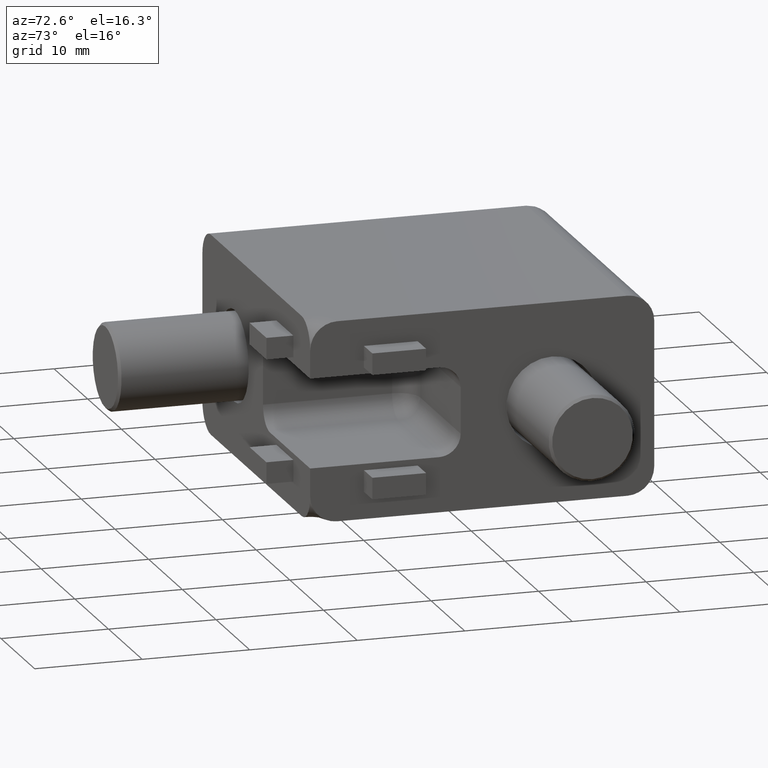
[diagram: clean part render]
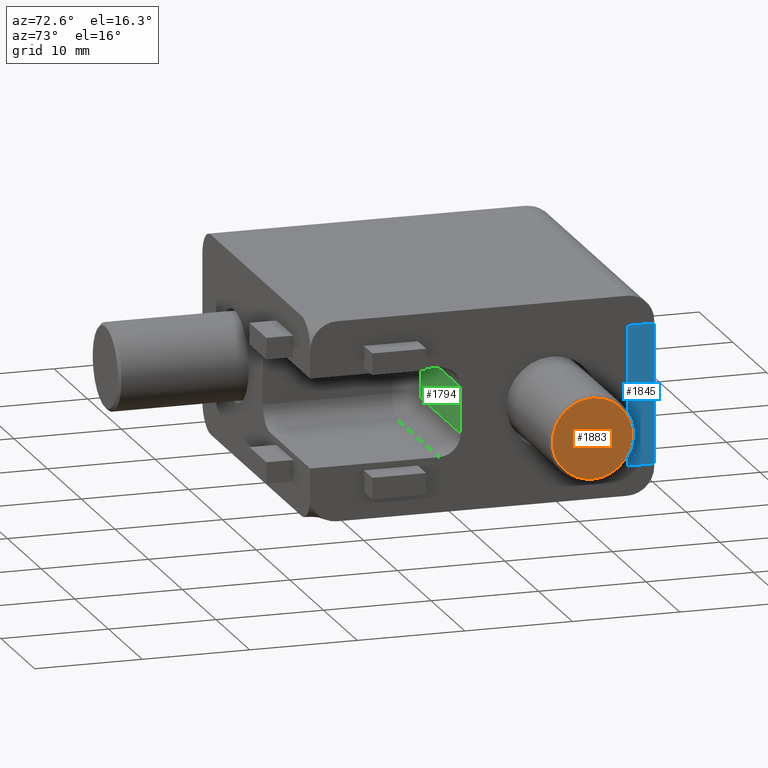
[diagram: same view with three faces highlighted in distinct colors, each labeled with its STEP entity id]
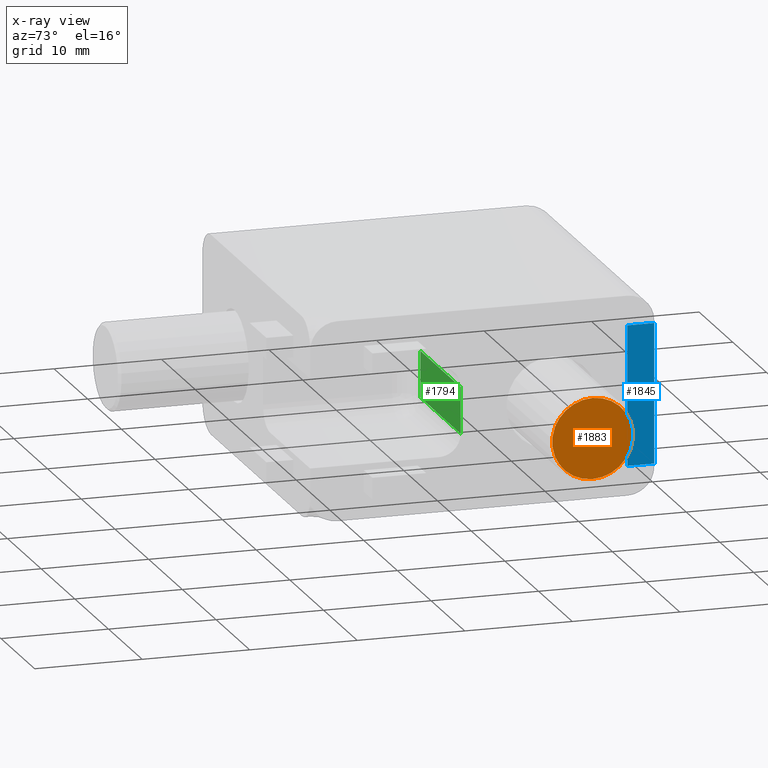
[diagram: x-ray of the same camera — body ghosted, the three highlighted faces saturated]
A machine part, auxiliary view with three faces highlighted in distinct colors.
The next image is the same camera in x-ray (body ghosted, the three faces saturated) — at least one of them is partly hidden behind the body in this view.
Their STEP definitions:

[orange] entity #1883 — the highlighted planar face has unit normal (1, 0, 0).
#122=PLANE('',#2098);
#245=FACE_OUTER_BOUND('',#380,.T.);
#380=EDGE_LOOP('',(#1735));
#796=CIRCLE('',#2079,3.75);
#950=VERTEX_POINT('',#3297);
#1197=EDGE_CURVE('',#950,#950,#796,.T.);
#1735=ORIENTED_EDGE('',*,*,#1197,.T.);
#1883=ADVANCED_FACE('',(#245),#122,.T.);
#2079=AXIS2_PLACEMENT_3D('',#3299,#2593,#2594);
#2098=AXIS2_PLACEMENT_3D('',#3355,#2651,#2652);
#2593=DIRECTION('center_axis',(1.,0.,0.));
#2594=DIRECTION('ref_axis',(0.,0.,-1.));
#2651=DIRECTION('center_axis',(1.,0.,0.));
#2652=DIRECTION('ref_axis',(0.,0.,-1.));
#3297=CARTESIAN_POINT('',(28.7248569721971,8.55228564495505,-3.75));
#3299=CARTESIAN_POINT('Origin',(28.7248569721971,8.55228564495505,1.73472347597681E-15));
#3355=CARTESIAN_POINT('Origin',(28.7248569721971,8.55228564495505,1.73472347597681E-15));

[blue] entity #1845 — the highlighted planar face has unit normal (-1, 0, 0).
#94=PLANE('',#2042);
#207=FACE_OUTER_BOUND('',#338,.T.);
#338=EDGE_LOOP('',(#1584,#1585,#1586,#1587));
#497=LINE('',#3185,#671);
#501=LINE('',#3200,#675);
#505=LINE('',#3209,#679);
#506=LINE('',#3210,#680);
#671=VECTOR('',#2469,1000.);
#675=VECTOR('',#2483,1000.);
#679=VECTOR('',#2491,1000.);
#680=VECTOR('',#2492,1000.);
#916=VERTEX_POINT('',#3182);
#917=VERTEX_POINT('',#3184);
#923=VERTEX_POINT('',#3199);
#926=VERTEX_POINT('',#3208);
#1144=EDGE_CURVE('',#917,#916,#497,.T.);
#1151=EDGE_CURVE('',#917,#923,#501,.T.);
#1156=EDGE_CURVE('',#926,#916,#505,.T.);
#1157=EDGE_CURVE('',#923,#926,#506,.T.);
#1584=ORIENTED_EDGE('',*,*,#1151,.F.);
#1585=ORIENTED_EDGE('',*,*,#1144,.T.);
#1586=ORIENTED_EDGE('',*,*,#1156,.F.);
#1587=ORIENTED_EDGE('',*,*,#1157,.F.);
#1845=ADVANCED_FACE('',(#207),#94,.F.);
#2042=AXIS2_PLACEMENT_3D('',#3207,#2489,#2490);
#2469=DIRECTION('',(0.,0.,-1.));
#2483=DIRECTION('',(0.,1.,-3.46944695195362E-16));
#2489=DIRECTION('center_axis',(-1.,0.,0.));
#2490=DIRECTION('ref_axis',(0.,0.,1.));
#2491=DIRECTION('',(0.,-1.,3.65204942310907E-16));
#2492=DIRECTION('',(0.,0.,-1.));
#3182=CARTESIAN_POINT('',(16.7248569721971,15.5522856449551,-6.50000000013051));
#3184=CARTESIAN_POINT('',(16.7248569721971,15.5522856449551,6.50000000013051));
#3185=CARTESIAN_POINT('',(16.7248569721971,15.5522856449551,500000.));
#3199=CARTESIAN_POINT('',(16.7248569721971,18.052285644955,6.50000000013051));
#3200=CARTESIAN_POINT('',(16.7248569721971,-13.947714355045,6.50000000000001));
#3207=CARTESIAN_POINT('Origin',(16.7248569721971,15.5522856449551,500000.));
#3208=CARTESIAN_POINT('',(16.7248569721971,18.052285644955,-6.50000000013051));
#3209=CARTESIAN_POINT('',(16.7248569721971,15.5522856451377,-6.50000000001683));
#3210=CARTESIAN_POINT('',(16.7248569721971,18.052285644955,500000.));

[green] entity #1794 — the highlighted planar face has unit normal (0, -1, 0).
#62=PLANE('',#1971);
#156=FACE_OUTER_BOUND('',#277,.T.);
#277=EDGE_LOOP('',(#1371,#1372,#1373,#1374));
#399=LINE('',#2803,#573);
#445=LINE('',#2932,#619);
#446=LINE('',#2934,#620);
#447=LINE('',#2935,#621);
#573=VECTOR('',#2169,1000.);
#619=VECTOR('',#2289,1000.);
#620=VECTOR('',#2290,1000.);
#621=VECTOR('',#2291,1000.);
#831=VERTEX_POINT('',#2800);
#832=VERTEX_POINT('',#2802);
#878=VERTEX_POINT('',#2931);
#879=VERTEX_POINT('',#2933);
#1004=EDGE_CURVE('',#832,#831,#399,.T.);
#1070=EDGE_CURVE('',#831,#878,#445,.T.);
#1071=EDGE_CURVE('',#878,#879,#446,.T.);
#1072=EDGE_CURVE('',#879,#832,#447,.T.);
#1371=ORIENTED_EDGE('',*,*,#1004,.T.);
#1372=ORIENTED_EDGE('',*,*,#1070,.T.);
#1373=ORIENTED_EDGE('',*,*,#1071,.T.);
#1374=ORIENTED_EDGE('',*,*,#1072,.T.);
#1794=ADVANCED_FACE('',(#156),#62,.T.);
#1971=AXIS2_PLACEMENT_3D('',#2930,#2287,#2288);
#2169=DIRECTION('',(0.,0.,1.));
#2287=DIRECTION('center_axis',(0.,-1.,0.));
#2288=DIRECTION('ref_axis',(0.,0.,-1.));
#2289=DIRECTION('',(-1.,0.,-1.23908819712629E-16));
#2290=DIRECTION('',(0.,0.,-1.));
#2291=DIRECTION('',(1.,0.,-1.23908819712629E-16));
#2800=CARTESIAN_POINT('',(16.7248569721971,0.0522856449550502,2.15));
#2802=CARTESIAN_POINT('',(16.7248569721971,0.0522856449550502,-2.15));
#2803=CARTESIAN_POINT('',(16.7248569721971,0.0522856449550502,-4.15));
#2930=CARTESIAN_POINT('Origin',(16.7248569721971,0.0522856449550502,4.15));
#2931=CARTESIAN_POINT('',(4.72485697219707,0.0522856449550502,2.15));
#2932=CARTESIAN_POINT('',(16.7248569721971,0.0522856449550502,2.15));
#2933=CARTESIAN_POINT('',(4.72485697219707,0.0522856449550502,-2.15));
#2934=CARTESIAN_POINT('',(4.72485697219707,0.0522856449550502,4.15));
#2935=CARTESIAN_POINT('',(16.7248569721971,0.0522856449550502,-2.15));